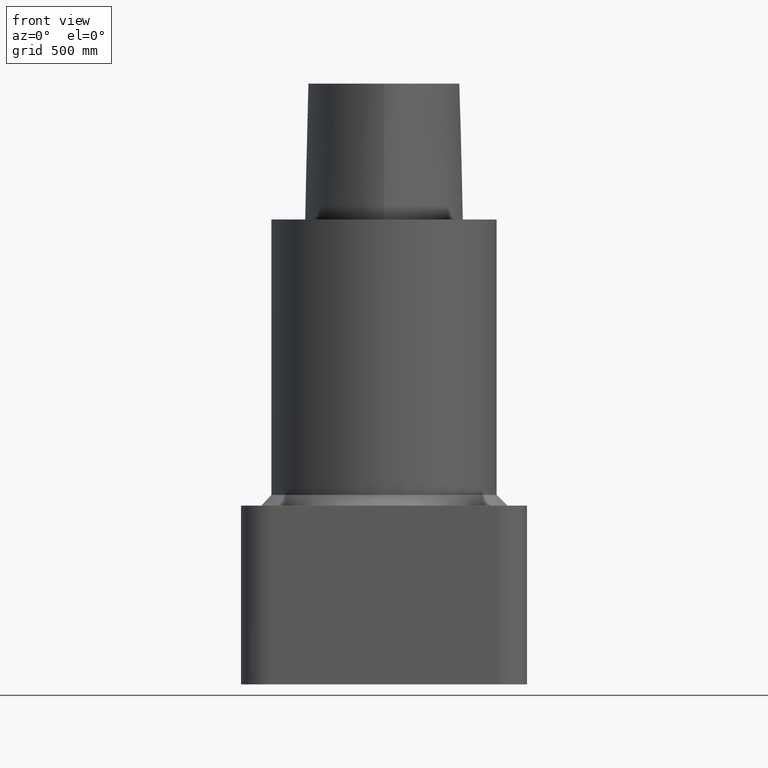
[diagram: clean part render]
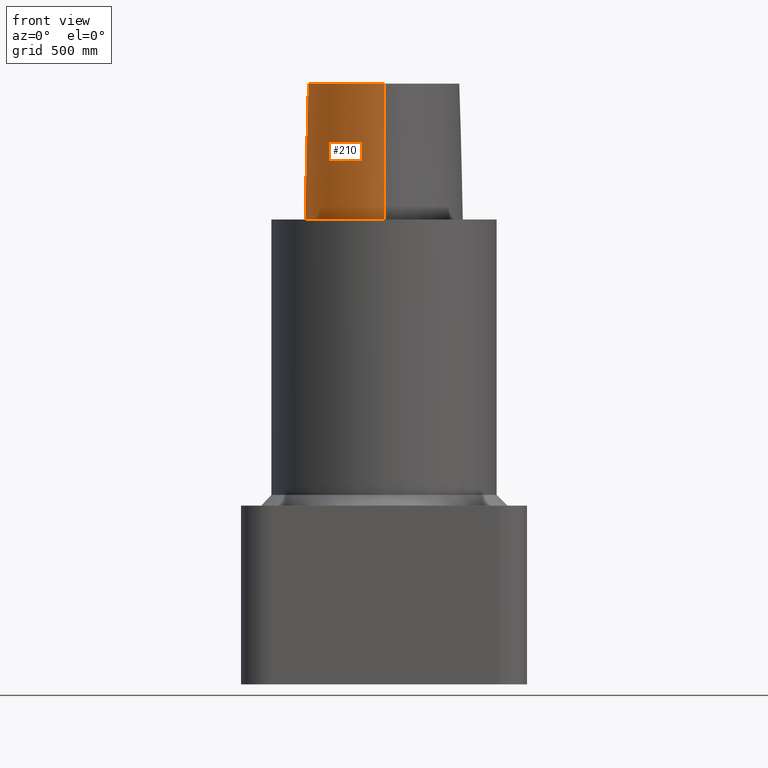
[diagram: same view with one face highlighted and labeled with its STEP entity id]
A machine part, front view. The second image highlights one B-rep face of the part: STEP entity #210.
In plain terms, the highlighted face is a freeform B-spline surface patch.
Its self-contained STEP definition (entity closure, byte-faithful):
#93=EDGE_CURVE('Unnamed[1]',#269,#270,#271,.T.);
#180=EDGE_CURVE('Unnamed[1]',#269,#397,#398,.T.);
#189=EDGE_CURVE('Unnamed[1]',#409,#270,#410,.T.);
#198=EDGE_CURVE('Unnamed[1]',#397,#409,#421,.T.);
#210=ADVANCED_FACE('Unnamed[1]',(#435),#436,.T.);
#269=VERTEX_POINT('',#493);
#270=VERTEX_POINT('',#494);
#271=LINE('',#495,#496);
#397=VERTEX_POINT('',#674);
#398=B_SPLINE_CURVE_WITH_KNOTS('',3,(#675,#676,#677,#678,#679,#680,#681,#682,#683,#684,#685,#686,#687,#688,#689,#690),.UNSPECIFIED.,.F.,.F.,(4,1,1,1,1,1,1,1,1,1,1,1,1,4),(0.0,0.447924670568964,0.9388024242536,1.50591409090711,2.07314340012323,2.72424957442464,3.2253501842849,3.80982102049476,4.34867996267067,4.85900173381144,5.37972031856977,6.03459825488646,6.61113557741484,6.61513393087395),.UNSPECIFIED.);
#409=VERTEX_POINT('',#707);
#410=B_SPLINE_CURVE_WITH_KNOTS('',3,(#708,#709,#710,#711,#712,#713,#714,#715,#716,#717,#718,#719,#720,#721,#722,#723,#724,#725),.UNSPECIFIED.,.F.,.F.,(4,1,1,1,1,1,1,1,1,2,1,1,1,1,4),(-6.6151339308743,-6.20168806019465,-5.78824218951501,-5.37479631883537,-4.96135044815572,-4.13445870679644,-3.30756696543715,-2.89412109475751,-2.48067522407786,-2.06722935339822,-1.65378348271857,-1.24033761203893,-0.826891741359287,-0.413445870679644,0.0),.UNSPECIFIED.);
#421=LINE('',#740,#741);
#435=FACE_OUTER_BOUND('',#762,.T.);
#436=B_SPLINE_SURFACE_WITH_KNOTS('',3,3,((#763,#764,#765,#766),(#767,#768,#769,#770),(#771,#772,#773,#774),(#775,#776,#777,#778),(#779,#780,#781,#782),(#783,#784,#785,#786),(#787,#788,#789,#790),(#791,#792,#793,#794),(#795,#796,#797,#798),(#799,#800,#801,#802),(#803,#804,#805,#806),(#807,#808,#809,#810),(#811,#812,#813,#814),(#815,#816,#817,#818),(#819,#820,#821,#822),(#823,#824,#825,#826),(#827,#828,#829,#830),(#831,#832,#833,#834)),.UNSPECIFIED.,.F.,.F.,.F.,(4,1,1,1,1,1,1,1,1,2,1,1,1,1,4),(4,4),(-6.6151339308743,-6.20168806019465,-5.78824218951501,-5.37479631883537,-4.96135044815572,-4.13445870679644,-3.30756696543715,-2.89412109475751,-2.48067522407786,-2.06722935339822,-1.65378348271857,-1.24033761203893,-0.826891741359287,-0.413445870679644,0.0),(-3.8,0.0),.UNSPECIFIED.);
#493=CARTESIAN_POINT('',(-0.001218547003662,19.7276821925089,38.0));
#494=CARTESIAN_POINT('',(-0.045171994691285,20.6766009553285,-1.97215226305253E-031));
#495=CARTESIAN_POINT('',(-0.001218547003662,19.7276821925089,38.0));
#496=VECTOR('',#1007,38.0118715498723);
#674=CARTESIAN_POINT('',(0.038736923393866,-22.5191997536361,38.0));
#675=CARTESIAN_POINT('',(-0.001218547003662,19.7276821925089,38.0));
#676=CARTESIAN_POINT('',(-1.49408492138443,19.6585333605309,38.0));
#677=CARTESIAN_POINT('',(-4.62297391420352,19.513604770166,38.0));
#678=CARTESIAN_POINT('',(-9.56160616752212,18.4291575730197,38.0));
#679=CARTESIAN_POINT('',(-14.5427684976927,16.2697452580488,38.0));
#680=CARTESIAN_POINT('',(-19.4315563551602,12.5302108980807,38.0));
#681=CARTESIAN_POINT('',(-21.306358833612,6.76352894547076,38.0));
#682=CARTESIAN_POINT('',(-21.0724946936277,0.957075236984038,38.0));
#683=CARTESIAN_POINT('',(-19.7876470880144,-4.34628503581652,38.0));
#684=CARTESIAN_POINT('',(-17.5396999600095,-9.33314444653089,38.0));
#685=CARTESIAN_POINT('',(-14.645447733857,-13.7185760345629,38.0));
#686=CARTESIAN_POINT('',(-10.7996726536643,-17.856257282137,38.0));
#687=CARTESIAN_POINT('',(-6.00479510196376,-21.2687382067675,38.0));
#688=CARTESIAN_POINT('',(-1.90747171908525,-22.5250621415864,38.0));
#689=CARTESIAN_POINT('',(0.025424107066464,-22.5192678176378,38.0));
#690=CARTESIAN_POINT('',(0.038736923394311,-22.519199753636,38.0));
#707=CARTESIAN_POINT('',(0.04359356758149,-23.4691235068931,-1.97215226305253E-031));
#708=CARTESIAN_POINT('',(0.04359356758149,-23.4691235068931,-1.97215226305253E-031));
#709=CARTESIAN_POINT('',(-1.4714994713963,-23.4767895315797,-1.97215226305253E-031));
#710=CARTESIAN_POINT('',(-4.43923476371401,-22.821149804767,0.0));
#711=CARTESIAN_POINT('',(-8.35043230079961,-20.8000751253325,0.0));
#712=CARTESIAN_POINT('',(-11.744900222602,-18.1556117874078,1.97215226305253E-031));
#713=CARTESIAN_POINT('',(-15.6989602501314,-14.0406306929147,-9.86076131526265E-032));
#714=CARTESIAN_POINT('',(-19.5352875070682,-8.00624990770787,-9.86076131526265E-032));
#715=CARTESIAN_POINT('',(-21.7205626190491,-1.16081708945282,2.71170936169723E-031));
#716=CARTESIAN_POINT('',(-22.2486616783342,4.54965558738736,3.94430452610506E-031));
#717=CARTESIAN_POINT('',(-21.6646421256468,9.00229539124618,3.94430452610506E-031));
#718=CARTESIAN_POINT('',(-20.3945635471922,11.7780544971003,-9.86076131526265E-032));
#719=CARTESIAN_POINT('',(-18.5925528034471,14.1980602922581,2.95822839457879E-031));
#720=CARTESIAN_POINT('',(-16.3226584122258,16.1777748720707,3.94430452610506E-031));
#721=CARTESIAN_POINT('',(-12.5076407874579,18.2524201541303,3.94430452610506E-031));
#722=CARTESIAN_POINT('',(-8.46776192107786,19.679114377952,-3.94430452610506E-031));
#723=CARTESIAN_POINT('',(-4.23043497193604,20.487781597334,1.97215226305253E-031));
#724=CARTESIAN_POINT('',(-1.42313094248379,20.6127745766442,0.0));
#725=CARTESIAN_POINT('',(-0.045171994691285,20.6766009553285,-1.97215226305253E-031));
#740=CARTESIAN_POINT('',(0.038736923393866,-22.5191997536361,38.0));
#741=VECTOR('',#1173,38.0118715498723);
#762=EDGE_LOOP('',(#1187,#1188,#1189,#1190));
#763=CARTESIAN_POINT('',(0.038736923393866,-22.5191997536361,38.0));
#764=CARTESIAN_POINT('',(0.04035580478973,-22.8358410047159,25.3333333333066));
#765=CARTESIAN_POINT('',(0.041974686185626,-23.1524822558133,12.6666666666934));
#766=CARTESIAN_POINT('',(0.04359356758149,-23.4691235068931,-1.97215226305253E-031));
#767=CARTESIAN_POINT('',(-1.33786123484754,-22.5261650259856,38.0));
#768=CARTESIAN_POINT('',(-1.38240731367927,-22.8430399310626,25.3333333333066));
#769=CARTESIAN_POINT('',(-1.42695339249092,-23.1599147815484,12.6666666666934));
#770=CARTESIAN_POINT('',(-1.4714994713963,-23.4767895315797,-1.97215226305253E-031));
#771=CARTESIAN_POINT('',(-4.08909358431842,-21.9268839879558,38.0));
#772=CARTESIAN_POINT('',(-4.20580731135515,-22.2249725500078,25.3333333333066));
#773=CARTESIAN_POINT('',(-4.32252104640446,-22.5230611651922,12.6666666666934));
#774=CARTESIAN_POINT('',(-4.43923476371401,-22.821149804767,0.0));
#775=CARTESIAN_POINT('',(-7.8333083619947,-19.9973514861616,38.0));
#776=CARTESIAN_POINT('',(-8.00568301809614,-20.2649260859405,25.3333333333066));
#777=CARTESIAN_POINT('',(-8.1780576640789,-20.532500564315,12.6666666666934));
#778=CARTESIAN_POINT('',(-8.35043230079961,-20.8000751253325,0.0));
#779=CARTESIAN_POINT('',(-11.1035071147626,-17.450554957873,38.0));
#780=CARTESIAN_POINT('',(-11.3173048160562,-17.6855739222454,25.3333333333066));
#781=CARTESIAN_POINT('',(-11.5311025116181,-17.9205928617968,12.6666666666934));
#782=CARTESIAN_POINT('',(-11.744900222602,-18.1556117874078,1.97215226305253E-031));
#783=CARTESIAN_POINT('',(-14.9379535189057,-13.461132049697,38.0));
#784=CARTESIAN_POINT('',(-15.191622410671,-13.6542981711372,25.3333333333066));
#785=CARTESIAN_POINT('',(-15.4452913389853,-13.8474645327131,12.6666666666934));
#786=CARTESIAN_POINT('',(-15.6989602501314,-14.0406306929147,-9.86076131526265E-032));
#787=CARTESIAN_POINT('',(-18.6681263017223,-7.59391757463204,38.0));
#788=CARTESIAN_POINT('',(-18.9571800800711,-7.73136168081928,25.3333333333066));
#789=CARTESIAN_POINT('',(-19.2462337287194,-7.86880572399774,12.6666666666934));
#790=CARTESIAN_POINT('',(-19.5352875070682,-8.00624990770787,-9.86076131526265E-032));
#791=CARTESIAN_POINT('',(-20.7857899858339,-0.952862819790525,38.0));
#792=CARTESIAN_POINT('',(-21.0973808305434,-1.02218087467418,25.3333333333066));
#793=CARTESIAN_POINT('',(-21.408971677436,-1.09149899580772,12.6666666666934));
#794=CARTESIAN_POINT('',(-21.7205626190491,-1.16081708945282,2.71170936169723E-031));
#795=CARTESIAN_POINT('',(-21.2911760556836,4.5469215763113,38.0));
#796=CARTESIAN_POINT('',(-21.610337904926,4.54783292082248,25.3333333333066));
#797=CARTESIAN_POINT('',(-21.9294998290918,4.54874426225691,12.6666666666934));
#798=CARTESIAN_POINT('',(-22.2486616783342,4.54965558738736,3.94430452610506E-031));
#799=CARTESIAN_POINT('',(-20.7345309521958,8.74909381391006,38.0));
#800=CARTESIAN_POINT('',(-21.0445680426217,8.83349432450556,25.3333333333066));
#801=CARTESIAN_POINT('',(-21.3546050933631,8.91789488065068,12.6666666666934));
#802=CARTESIAN_POINT('',(-21.6646421256468,9.00229539124618,3.94430452610506E-031));
#803=CARTESIAN_POINT('',(-19.5531512296439,11.3174844040833,38.0));
#804=CARTESIAN_POINT('',(-19.8336219699984,11.4710077674213,25.3333333333066));
#805=CARTESIAN_POINT('',(-20.1140927680763,11.6245311337623,12.6666666666934));
#806=CARTESIAN_POINT('',(-20.3945635471922,11.7780544971003,-9.86076131526265E-032));
#807=CARTESIAN_POINT('',(-17.9100913688793,13.524027510437,38.0));
#808=CARTESIAN_POINT('',(-18.1375785458768,13.7487051053655,25.3333333333066));
#809=CARTESIAN_POINT('',(-18.365065665211,13.9733826973296,12.6666666666934));
#810=CARTESIAN_POINT('',(-18.5925528034471,14.1980602922581,2.95822839457879E-031));
#811=CARTESIAN_POINT('',(-15.7996349656398,15.3762170634413,38.0));
#812=CARTESIAN_POINT('',(-15.9739761051783,15.6434029846179,25.3333333333066));
#813=CARTESIAN_POINT('',(-16.1483172726872,15.9105889315134,12.6666666666934));
#814=CARTESIAN_POINT('',(-16.3226584122258,16.1777748720707,3.94430452610506E-031));
#815=CARTESIAN_POINT('',(-12.1175640002064,17.3825162484012,38.0));
#816=CARTESIAN_POINT('',(-12.2475895903055,17.6724842099619,25.3333333333066));
#817=CARTESIAN_POINT('',(-12.3776152070492,17.9624521925696,12.6666666666934));
#818=CARTESIAN_POINT('',(-12.5076407874579,18.2524201541303,3.94430452610506E-031));
#819=CARTESIAN_POINT('',(-8.21761151654222,18.7588585989994,38.0));
#820=CARTESIAN_POINT('',(-8.30099497910627,19.0656105427881,25.3333333333066));
#821=CARTESIAN_POINT('',(-8.38437843913309,19.3723624535439,12.6666666666934));
#822=CARTESIAN_POINT('',(-8.46776192107786,19.679114377952,-3.94430452610506E-031));
#823=CARTESIAN_POINT('',(-4.13466093881225,19.5396850837055,38.0));
#824=CARTESIAN_POINT('',(-4.16658562115465,19.8557172636973,25.3333333333066));
#825=CARTESIAN_POINT('',(-4.19851029939059,20.1717494367229,12.6666666666934));
#826=CARTESIAN_POINT('',(-4.23043497193604,20.487781597334,1.97215226305253E-031));
#827=CARTESIAN_POINT('',(-1.37917220403684,19.6638560588908,38.0));
#828=CARTESIAN_POINT('',(-1.39382511685176,19.98016223565,25.3333333333066));
#829=CARTESIAN_POINT('',(-1.40847802945569,20.296468399885,12.6666666666934));
#830=CARTESIAN_POINT('',(-1.42313094248379,20.6127745766442,0.0));
#831=CARTESIAN_POINT('',(-0.001218547003662,19.7276821925089,38.0));
#832=CARTESIAN_POINT('',(-0.015869696232855,20.043988446791,25.3333333333066));
#833=CARTESIAN_POINT('',(-0.030520845462092,20.3602947010464,12.6666666666934));
#834=CARTESIAN_POINT('',(-0.045171994691285,20.6766009553285,-1.97215226305253E-031));
#1007=DIRECTION('',(-0.001156308434589,0.02496374748543,-0.999687688361864));
#1173=DIRECTION('',(0.000127766510556,-0.024990186342461,-0.999687688361864));
#1187=ORIENTED_EDGE('',*,*,#189,.F.);
#1188=ORIENTED_EDGE('',*,*,#198,.F.);
#1189=ORIENTED_EDGE('',*,*,#180,.F.);
#1190=ORIENTED_EDGE('',*,*,#93,.T.);